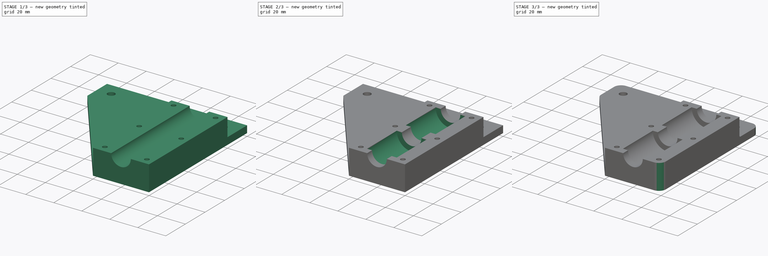
[diagram: build sequence overview — one tinted view per stage of 3, left to right]
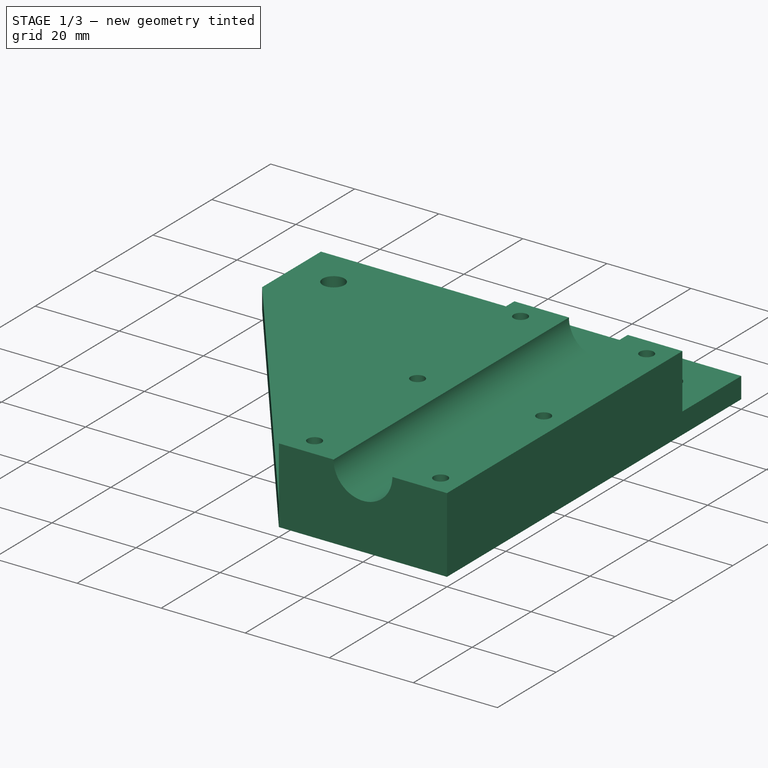
[diagram: stage 1 of 3 — iso view after this stage's code; geometry added in this stage tinted green]
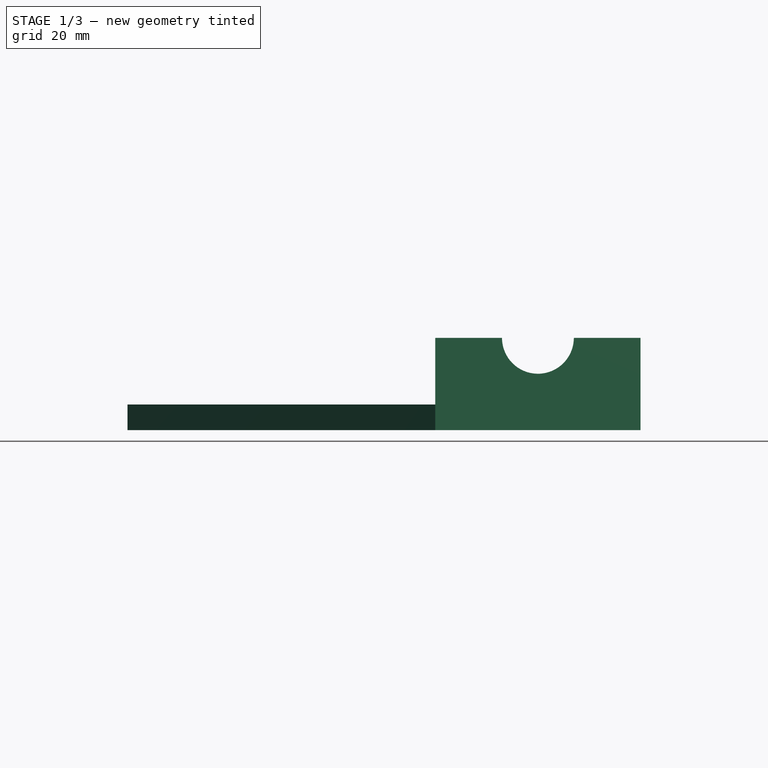
[diagram: stage 1 of 3 — front view after this stage's code; geometry added in this stage tinted green]
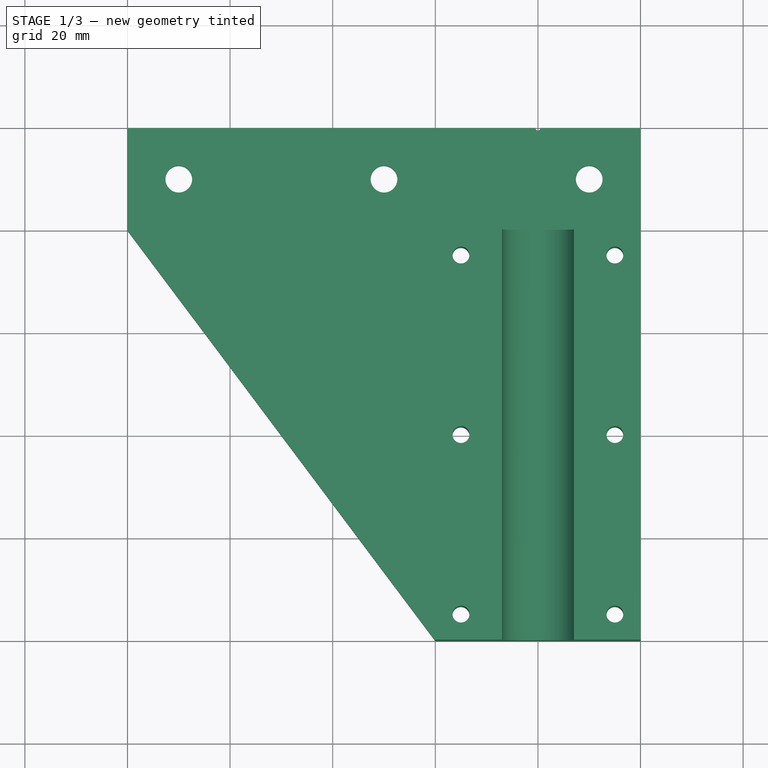
[diagram: stage 1 of 3 — top view after this stage's code; geometry added in this stage tinted green]
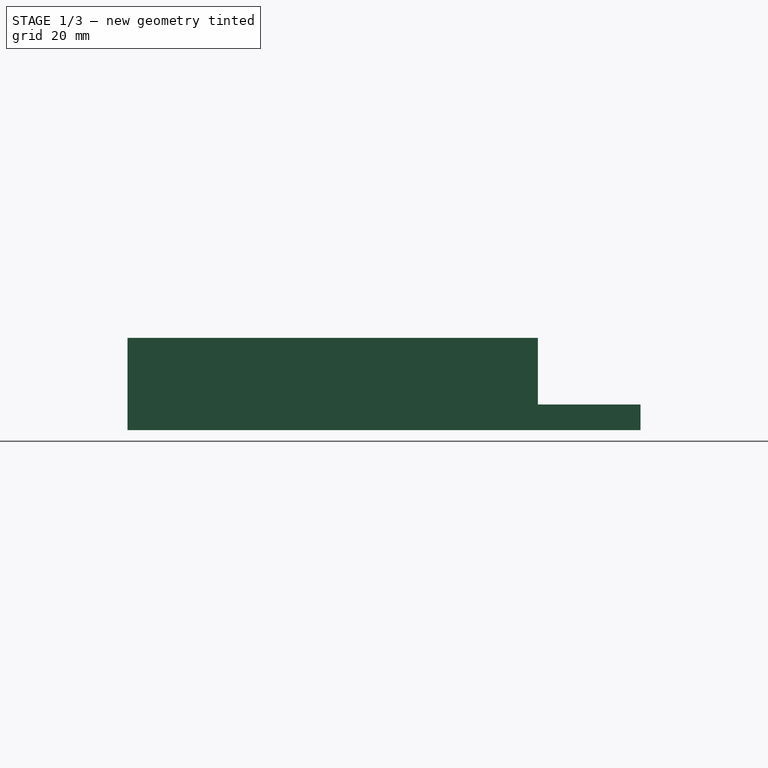
[diagram: stage 1 of 3 — right view after this stage's code; geometry added in this stage tinted green]
FCSTD DOCUMENT  (FreeCAD 0.19R20209 (Git))
Label: Z-Axel-Bearing_1012a
License: Creative Commons Attribution
LicenseURL: http://creativecommons.org/licenses/by/4.0/
objects: Sketcher::SketchObject×6, PartDesign::Pocket×5, PartDesign::Plane×3, PartDesign::Fillet×2, PartDesign::Pad×1, PartDesign::Body×1
note: 26 computed .brp shape members not serialized (recipe doc carries the construction recipe); baked Part::Feature solids carry a one-line shape summary decoded from their .brp

FEATURE [Sketcher::SketchObject] Sketch
  MapMode = 5
  Placement = pos=(0,0,0) rot=(1,0,0;1.5708rad)
  Support = -> [XZ_Plane]
  sketch-geometry (8):
    g0: LineSegment StartX=-80 StartY=-18 StartZ=0 EndX=-80 EndY=-13 EndZ=0
    g1: LineSegment StartX=-80 StartY=-13 StartZ=0 EndX=-20 EndY=-13 EndZ=0
    g2: LineSegment StartX=-20 StartY=-13 StartZ=0 EndX=-20 EndY=0 EndZ=0
    g3: LineSegment StartX=20 StartY=9e-15 StartZ=0 EndX=20 EndY=-18 EndZ=0
    g4: LineSegment StartX=20 StartY=-18 StartZ=0 EndX=-80 EndY=-18 EndZ=0
    g5: ArcOfCircle CenterX=0 CenterY=0 CenterZ=0 NormalX=0 NormalY=0 NormalZ=1 AngleXU=0 Radius=7 StartAngle=3.14159 EndAngle=6.28319
    g6: LineSegment StartX=-7 StartY=0 StartZ=0 EndX=-20 EndY=0 EndZ=0
    g7: LineSegment StartX=7 StartY=0 StartZ=0 EndX=20 EndY=0 EndZ=0
  constraints (24):
    c: Vertical(g0)
    c: Coincident(g0,g1)
    c: Coincident(g1,g2)
    c: Vertical(g2)
    c: Vertical(g3)
    c: Coincident(g3,g4)
    c: Horizontal(g4)
    c: Coincident(g4,g0)
    c: Horizontal(g1)
    c: DistanceY(g0,g0) = 5
    c: DistanceX(g4,g4) = 100
    c: DistanceX(g2,g3) = 40
    c: Symmetric(g3,g2,g-1)
    c: DistanceY(g3,g3) = 18
    c: Horizontal(g5,g5)
    c: Horizontal(g5,g5)
    c: Coincident(g5,g-1)
    c: Diameter(g5) = 14
    c: Coincident(g6,g5)
    c: Horizontal(g6)
    c: Horizontal(g7)
    c: Equal(g7,g6)
    c: Coincident(g6,g2)
    c: Coincident(g7,g5)
FEATURE [PartDesign::Pad] Pad
  Length = 80
  Length2 = 20
  Placement = pos=(0,0,0) rot=(1,0,0;1.5708rad)
  Profile = -> Sketch
  Refine = true
  Type = 4
FEATURE [Sketcher::SketchObject] Sketch001
  ExternalGeometry = -> [Pad]
  MapMode = 5
  Support = -> [XY_Plane]
  sketch-geometry (17):
    g0: LineSegment StartX=-80 StartY=0 StartZ=0 EndX=-80 EndY=-80 EndZ=0
    g1: LineSegment StartX=-80 StartY=-80 StartZ=0 EndX=-20 EndY=-80 EndZ=0
    g2: LineSegment StartX=-20 StartY=-80 StartZ=0 EndX=-80 EndY=0 EndZ=0
    g3: Circle CenterX=-70 CenterY=10 CenterZ=0 NormalX=0 NormalY=0 NormalZ=1 AngleXU=0 Radius=2.6
    g4: Circle CenterX=-30 CenterY=10 CenterZ=0 NormalX=0 NormalY=0 NormalZ=1 AngleXU=0 Radius=2.6
    g5: Circle CenterX=10 CenterY=10 CenterZ=0 NormalX=0 NormalY=0 NormalZ=1 AngleXU=0 Radius=2.6
    g6: LineSegment [constr] StartX=-10.6 StartY=-5 StartZ=0 EndX=10.6 EndY=-5 EndZ=0
    g7: LineSegment [constr] StartX=10.6 StartY=-5 StartZ=0 EndX=10.6 EndY=-75 EndZ=0
    g8: LineSegment [constr] StartX=10.6 StartY=-75 StartZ=0 EndX=-10.6 EndY=-75 EndZ=0
    g9: LineSegment [constr] StartX=-10.6 StartY=-75 StartZ=0 EndX=-10.6 EndY=-5 EndZ=0
    g10: Circle CenterX=-15 CenterY=-5 CenterZ=0 NormalX=0 NormalY=0 NormalZ=1 AngleXU=0 Radius=1.65
    g11: Circle CenterX=-15 CenterY=-40 CenterZ=0 NormalX=0 NormalY=0 NormalZ=1 AngleXU=0 Radius=1.65
    g12: Circle CenterX=-15 CenterY=-75 CenterZ=0 NormalX=0 NormalY=0 NormalZ=1 AngleXU=0 Radius=1.65
    g13: Circle CenterX=15 CenterY=-5 CenterZ=0 NormalX=0 NormalY=0 NormalZ=1 AngleXU=0 Radius=1.65
    g14: Circle CenterX=15 CenterY=-40 CenterZ=0 NormalX=0 NormalY=0 NormalZ=1 AngleXU=0 Radius=1.65
    g15: Circle CenterX=15 CenterY=-75 CenterZ=0 NormalX=0 NormalY=0 NormalZ=1 AngleXU=0 Radius=1.65
    g16: Circle CenterX=0 CenterY=20 CenterZ=0 NormalX=0 NormalY=0 NormalZ=1 AngleXU=0 Radius=0.5
  constraints (43):
    c: Vertical(g0)
    c: Coincident(g0,g1)
    c: Coincident(g1,g2)
    c: Coincident(g2,g0)
    c: Coincident(g1,g-4)
    c: PointOnObject(g0,g-1)
    c: Coincident(g0,g-4)
    c: Horizontal(g3,g4)
    c: Equal(g3,g4)
    c: Equal(g4,g5)
    c: Symmetric(g5,g3,g4)
    c: DistanceY(g-1,g4) = 10
    c: DistanceX(g3,g5) = 80
    c: Diameter(g4) = 5.2
    c: Coincident(g6,g7)
    c: Coincident(g7,g8)
    c: Coincident(g8,g9)
    c: Coincident(g9,g6)
    c: Horizontal(g8)
    c: Vertical(g7)
    c: Vertical(g9)
    c: DistanceX(g6,g6) = 21.2
    c: DistanceY(g7,g7) = 70
    c: DistanceY(g6,g-1) = 5
    c: Symmetric(g12,g10,g11)
    c: Horizontal(g10,g6)
    c: Horizontal(g8,g12)
    c: Equal(g10,g11)
    c: Equal(g11,g12)
    c: Diameter(g10) = 3.3
    c: Vertical(g10,g11)
    c: Symmetric(g6,g6,g-2)
    c: Equal(g13,g14)
    c: Equal(g14,g15)
    c: Equal(g15,g10)
    c: Symmetric(g15,g13,g14)
    c: Symmetric(g13,g10,g-2)
    c: Symmetric(g15,g12,g-2)
    c: DistanceX(g11,g14) = 30
    c: PointOnObject(g16,g-2)
    c: Horizontal(g16,g-3)
    c: Diameter(g16) = 1
    c: DistanceX(g-1,g5) = 10
FEATURE [PartDesign::Pocket] Pocket
  BaseFeature = -> Pad
  Length = 5
  Length2 = 100
  Placement = pos=(0,0,0) rot=(1,0,0;1.5708rad)
  Profile = -> Sketch001
  Refine = true
  Type = 1
FEATURE [Sketcher::SketchObject] Sketch002
  MapMode = 5
  Support = -> [XY_Plane]
  sketch-geometry (4):
    g0: LineSegment StartX=-33.3571 StartY=42.2488 StartZ=0 EndX=33.3571 EndY=42.2488 EndZ=0
    g1: LineSegment StartX=33.3571 StartY=42.2488 StartZ=0 EndX=33.3571 EndY=0 EndZ=0
    g2: LineSegment StartX=33.3571 StartY=0 StartZ=0 EndX=-33.3571 EndY=0 EndZ=0
    g3: LineSegment StartX=-33.3571 StartY=0 StartZ=0 EndX=-33.3571 EndY=42.2488 EndZ=0
  constraints (9):
    c: Coincident(g0,g1)
    c: Coincident(g1,g2)
    c: Coincident(g2,g3)
    c: Coincident(g3,g0)
    c: Horizontal(g0)
    c: Horizontal(g2)
    c: Vertical(g1)
    c: Vertical(g3)
    c: Symmetric(g1,g2,g-1)
FEATURE [PartDesign::Pocket] Pocket001
  BaseFeature = -> Pocket
  Length = 13
  Length2 = 100
  Placement = pos=(0,0,0) rot=(1,0,0;1.5708rad)
  Profile = -> Sketch002
  Refine = true
  Type = 0
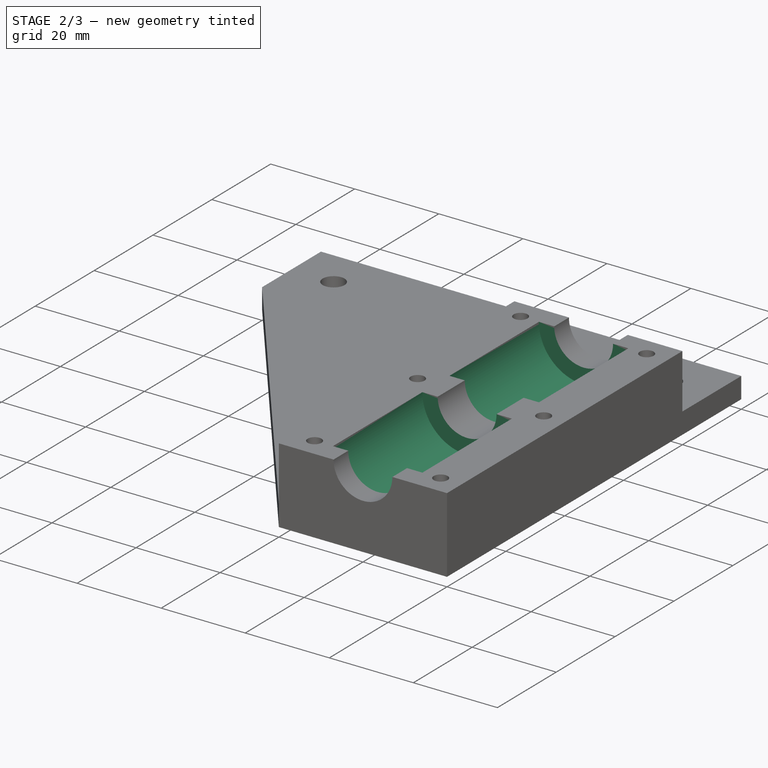
[diagram: stage 2 of 3 — iso view after this stage's code; geometry added in this stage tinted green]
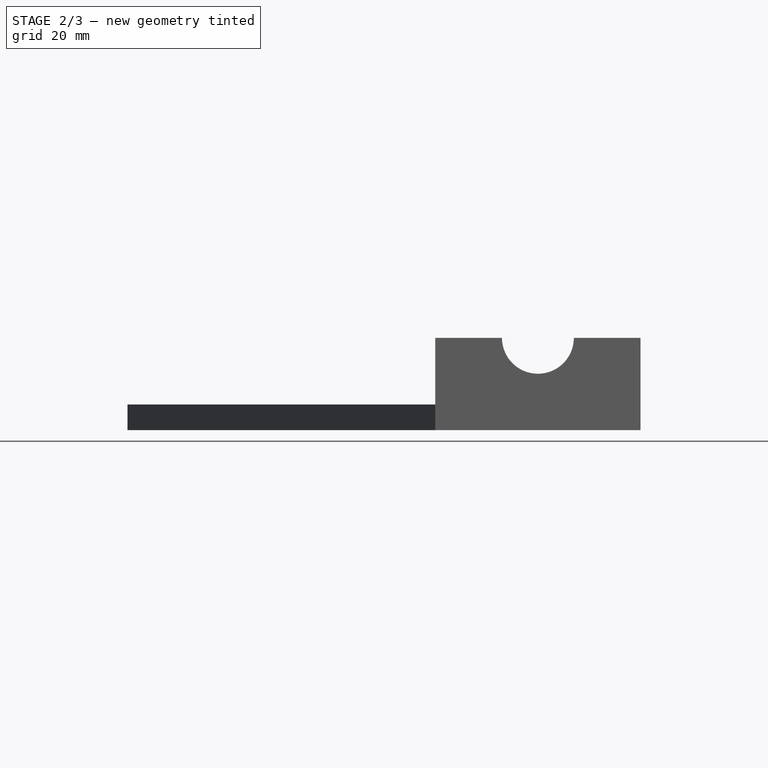
[diagram: stage 2 of 3 — front view after this stage's code; geometry added in this stage tinted green]
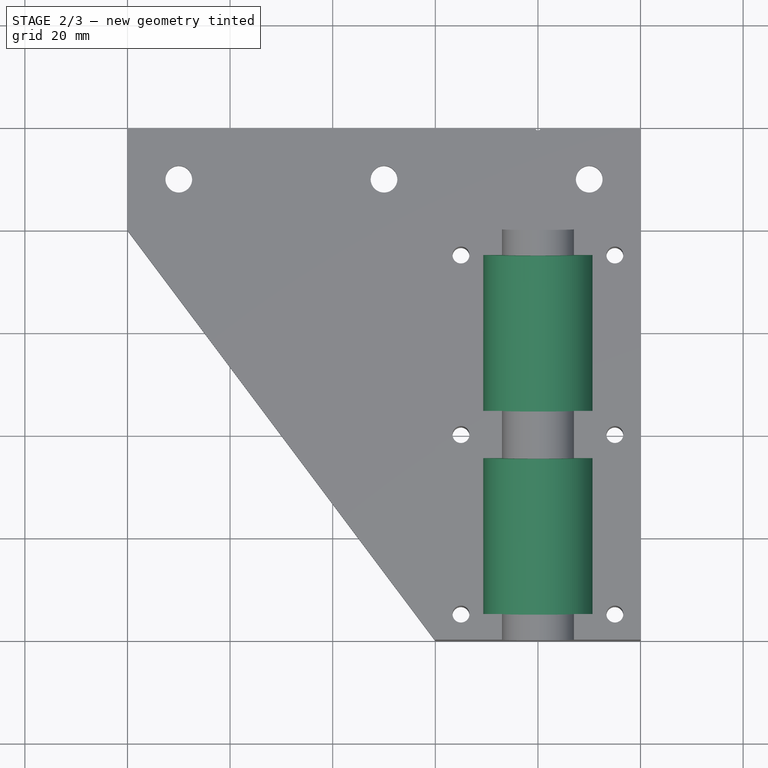
[diagram: stage 2 of 3 — top view after this stage's code; geometry added in this stage tinted green]
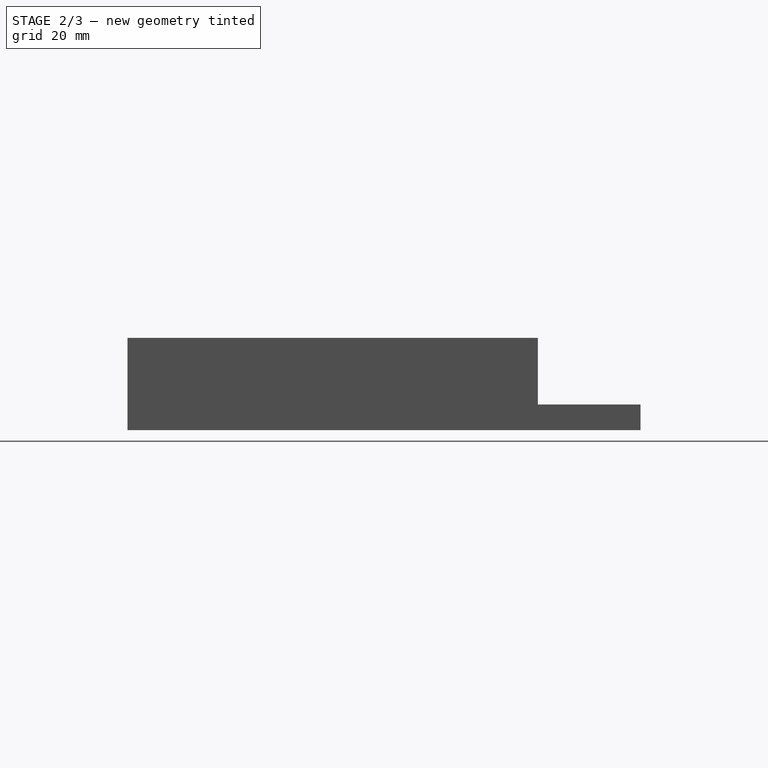
[diagram: stage 2 of 3 — right view after this stage's code; geometry added in this stage tinted green]
FEATURE [PartDesign::Plane] DatumPlane
  AttachmentOffset = pos=(0,0,5) rot=(0,0,1;0rad)
  Length = 119.491
  MapMode = 5
  Placement = pos=(0,-5,-1.1e-15) rot=(1,0,0;1.5708rad)
  ResizeMode = 0
  Support = -> [XZ_Plane]
  Width = 64.4914
FEATURE [Sketcher::SketchObject] Sketch003
  MapMode = 5
  Placement = pos=(0,-5,-1.1e-15) rot=(1,0,0;1.5708rad)
  Support = -> [DatumPlane]
  sketch-geometry (1):
    g0: Circle CenterX=0 CenterY=0 CenterZ=0 NormalX=0 NormalY=0 NormalZ=1 AngleXU=0 Radius=10.65
  constraints (2):
    c: Diameter(g0) = 21.3
    c: Coincident(g0,g-1)
FEATURE [PartDesign::Pocket] Pocket002
  BaseFeature = -> Pocket001
  Length = 30.4
  Length2 = 100
  Placement = pos=(0,0,0) rot=(1,0,0;1.5708rad)
  Profile = -> Sketch003
  Refine = true
  Reversed = true
  Type = 0
FEATURE [PartDesign::Plane] DatumPlane001
  AttachmentOffset = pos=(0,0,75) rot=(0,0,1;0rad)
  Length = 119.491
  MapMode = 5
  Placement = pos=(0,-75,-1.67e-14) rot=(1,0,0;1.5708rad)
  ResizeMode = 0
  Support = -> [XZ_Plane]
  Width = 64.4914
FEATURE [Sketcher::SketchObject] Sketch004
  MapMode = 5
  Placement = pos=(0,-75,-1.67e-14) rot=(1,0,0;1.5708rad)
  Support = -> [DatumPlane001]
  sketch-geometry (1):
    g0: Circle CenterX=0 CenterY=0 CenterZ=0 NormalX=0 NormalY=0 NormalZ=1 AngleXU=0 Radius=10.65
  constraints (2):
    c: Diameter(g0) = 21.3
    c: Coincident(g0,g-1)
FEATURE [PartDesign::Pocket] Pocket003
  BaseFeature = -> Pocket002
  Length = 30.4
  Length2 = 100
  Placement = pos=(0,0,0) rot=(1,0,0;1.5708rad)
  Profile = -> Sketch004
  Refine = true
  Type = 0
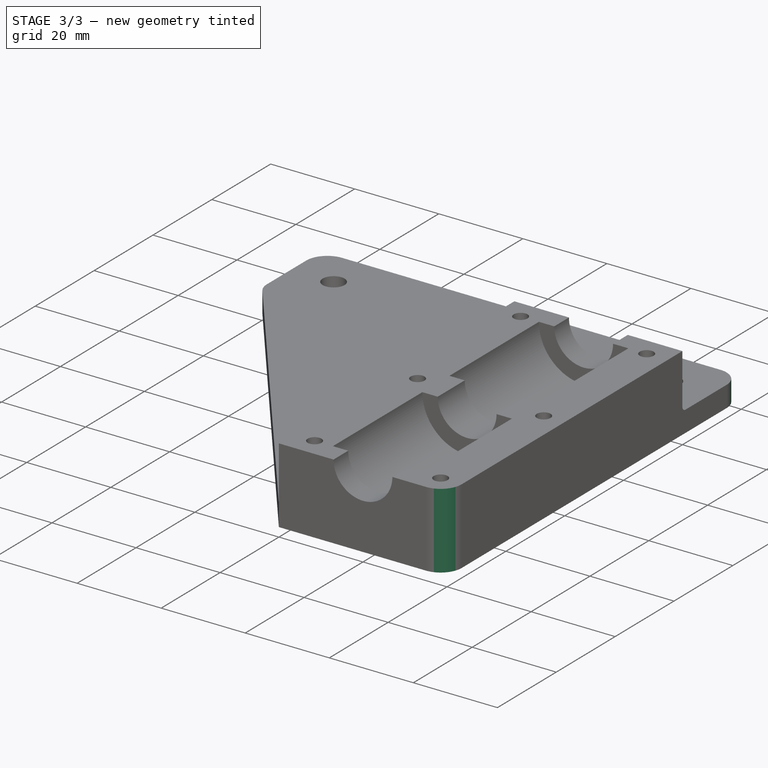
[diagram: stage 3 of 3 — iso view after this stage's code; geometry added in this stage tinted green]
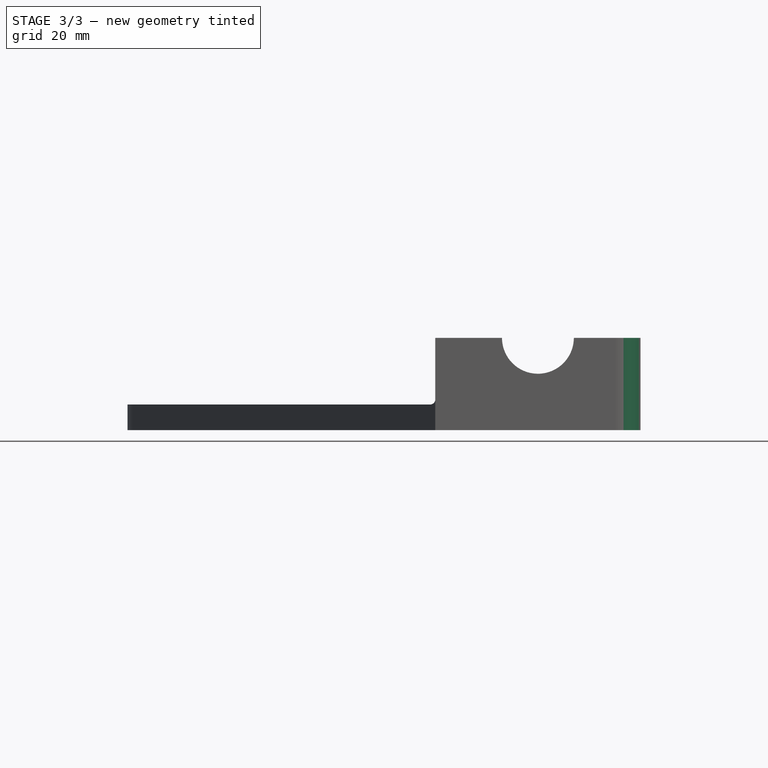
[diagram: stage 3 of 3 — front view after this stage's code; geometry added in this stage tinted green]
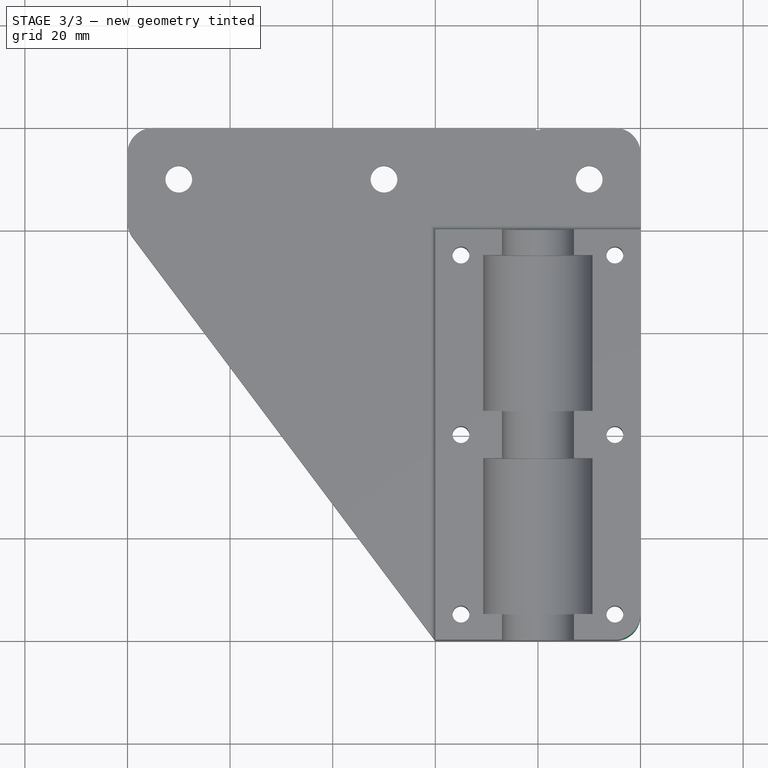
[diagram: stage 3 of 3 — top view after this stage's code; geometry added in this stage tinted green]
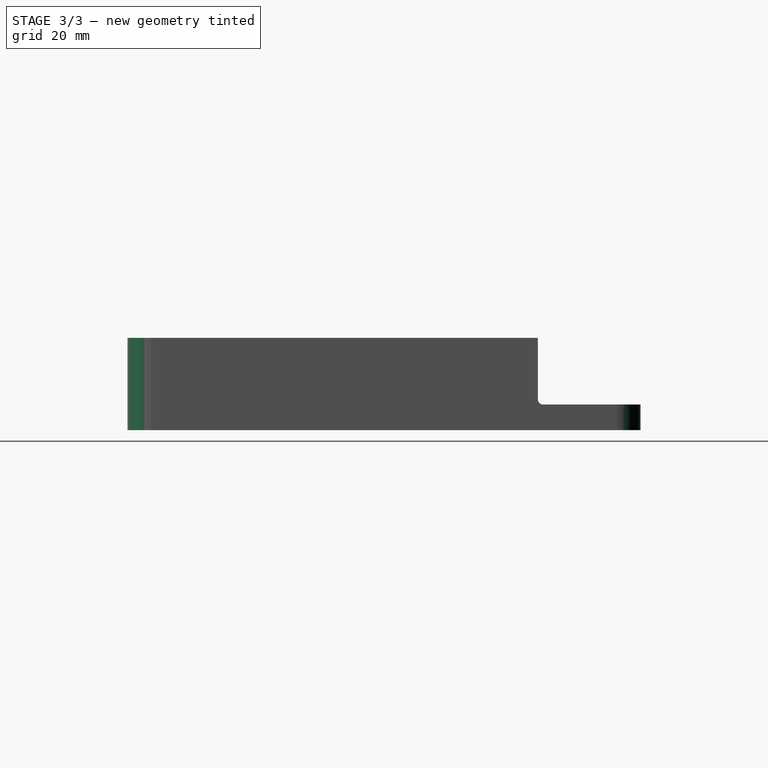
[diagram: stage 3 of 3 — right view after this stage's code; geometry added in this stage tinted green]
FEATURE [PartDesign::Plane] DatumPlane002
  AttachmentOffset = pos=(0,0,-18) rot=(0,0,1;0rad)
  Length = 126
  MapMode = 5
  Placement = pos=(0,0,-18) rot=(0,0,1;0rad)
  ResizeMode = 0
  Support = -> [XY_Plane]
  Width = 126
FEATURE [Sketcher::SketchObject] Sketch005
  ExternalGeometry = -> [Pocket003]
  MapMode = 5
  Placement = pos=(0,0,-18) rot=(0,0,1;0rad)
  Support = -> [DatumPlane002]
  sketch-geometry (42):
    g0: LineSegment StartX=-12.25 StartY=-6.58771 StartZ=0 EndX=-12.25 EndY=-3.41229 EndZ=0
    g1: LineSegment StartX=-12.25 StartY=-3.41229 StartZ=0 EndX=-15 EndY=-1.82457 EndZ=0
    g2: LineSegment StartX=-15 StartY=-1.82457 StartZ=0 EndX=-17.75 EndY=-3.41229 EndZ=0
    g3: LineSegment StartX=-17.75 StartY=-3.41229 StartZ=0 EndX=-17.75 EndY=-6.58771 EndZ=0
    g4: LineSegment StartX=-17.75 StartY=-6.58771 StartZ=0 EndX=-15 EndY=-8.17543 EndZ=0
    g5: LineSegment StartX=-15 StartY=-8.17543 StartZ=0 EndX=-12.25 EndY=-6.58771 EndZ=0
    g6: Circle [constr] CenterX=-15 CenterY=-5 CenterZ=0 NormalX=0 NormalY=0 NormalZ=1 AngleXU=0 Radius=3.17543
    g7: LineSegment StartX=17.75 StartY=-6.58771 StartZ=0 EndX=17.75 EndY=-3.41229 EndZ=0
    g8: LineSegment StartX=17.75 StartY=-3.41229 StartZ=0 EndX=15 EndY=-1.82457 EndZ=0
    g9: LineSegment StartX=15 StartY=-1.82457 StartZ=0 EndX=12.25 EndY=-3.41229 EndZ=0
    g10: LineSegment StartX=12.25 StartY=-3.41229 StartZ=0 EndX=12.25 EndY=-6.58771 EndZ=0
    g11: LineSegment StartX=12.25 StartY=-6.58771 StartZ=0 EndX=15 EndY=-8.17543 EndZ=0
    g12: LineSegment StartX=15 StartY=-8.17543 StartZ=0 EndX=17.75 EndY=-6.58771 EndZ=0
    g13: Circle [constr] CenterX=15 CenterY=-5 CenterZ=0 NormalX=0 NormalY=0 NormalZ=1 AngleXU=0 Radius=3.17543
    g14: LineSegment StartX=-12.25 StartY=-41.5877 StartZ=0 EndX=-12.25 EndY=-38.4123 EndZ=0
    g15: LineSegment StartX=-12.25 StartY=-38.4123 StartZ=0 EndX=-15 EndY=-36.8246 EndZ=0
    g16: LineSegment StartX=-15 StartY=-36.8246 StartZ=0 EndX=-17.75 EndY=-38.4123 EndZ=0
    g17: LineSegment StartX=-17.75 StartY=-38.4123 StartZ=0 EndX=-17.75 EndY=-41.5877 EndZ=0
    g18: LineSegment StartX=-17.75 StartY=-41.5877 StartZ=0 EndX=-15 EndY=-43.1754 EndZ=0
    g19: LineSegment StartX=-15 StartY=-43.1754 StartZ=0 EndX=-12.25 EndY=-41.5877 EndZ=0
    g20: Circle [constr] CenterX=-15 CenterY=-40 CenterZ=0 NormalX=0 NormalY=0 NormalZ=1 AngleXU=0 Radius=3.17543
    g21: LineSegment StartX=17.75 StartY=-41.5877 StartZ=0 EndX=17.75 EndY=-38.4123 EndZ=0
    g22: LineSegment StartX=17.75 StartY=-38.4123 StartZ=0 EndX=15 EndY=-36.8246 EndZ=0
    g23: LineSegment StartX=15 StartY=-36.8246 StartZ=0 EndX=12.25 EndY=-38.4123 EndZ=0
    g24: LineSegment StartX=12.25 StartY=-38.4123 StartZ=0 EndX=12.25 EndY=-41.5877 EndZ=0
    g25: LineSegment StartX=12.25 StartY=-41.5877 StartZ=0 EndX=15 EndY=-43.1754 EndZ=0
    g26: LineSegment StartX=15 StartY=-43.1754 StartZ=0 EndX=17.75 EndY=-41.5877 EndZ=0
    g27: Circle [constr] CenterX=15 CenterY=-40 CenterZ=0 NormalX=0 NormalY=0 NormalZ=1 AngleXU=0 Radius=3.17543
    g28: LineSegment StartX=-12.25 StartY=-76.5877 StartZ=0 EndX=-12.25 EndY=-73.4123 EndZ=0
    g29: LineSegment StartX=-12.25 StartY=-73.4123 StartZ=0 EndX=-15 EndY=-71.8246 EndZ=0
    g30: LineSegment StartX=-15 StartY=-71.8246 StartZ=0 EndX=-17.75 EndY=-73.4123 EndZ=0
    g31: LineSegment StartX=-17.75 StartY=-73.4123 StartZ=0 EndX=-17.75 EndY=-76.5877 EndZ=0
    g32: LineSegment StartX=-17.75 StartY=-76.5877 StartZ=0 EndX=-15 EndY=-78.1754 EndZ=0
    g33: LineSegment StartX=-15 StartY=-78.1754 StartZ=0 EndX=-12.25 EndY=-76.5877 EndZ=0
    g34: Circle [constr] CenterX=-15 CenterY=-75 CenterZ=0 NormalX=0 NormalY=0 NormalZ=1 AngleXU=0 Radius=3.17543
    g35: LineSegment StartX=17.75 StartY=-76.5877 StartZ=0 EndX=17.75 EndY=-73.4123 EndZ=0
    g36: LineSegment StartX=17.75 StartY=-73.4123 StartZ=0 EndX=15 EndY=-71.8246 EndZ=0
    g37: LineSegment StartX=15 StartY=-71.8246 StartZ=0 EndX=12.25 EndY=-73.4123 EndZ=0
    g38: LineSegment StartX=12.25 StartY=-73.4123 StartZ=0 EndX=12.25 EndY=-76.5877 EndZ=0
    g39: LineSegment StartX=12.25 StartY=-76.5877 StartZ=0 EndX=15 EndY=-78.1754 EndZ=0
    g40: LineSegment StartX=15 StartY=-78.1754 StartZ=0 EndX=17.75 EndY=-76.5877 EndZ=0
    g41: Circle [constr] CenterX=15 CenterY=-75 CenterZ=0 NormalX=0 NormalY=0 NormalZ=1 AngleXU=0 Radius=3.17543
  constraints (96):
    c: Coincident(g0,g1)
    c: Coincident(g1,g2)
    c: Coincident(g2,g3)
    c: Coincident(g3,g4)
    c: Coincident(g4,g5)
    c: Coincident(g5,g0)
    c: Equal(g0, g1-g5) x5
    c: PointOnObject(g0,g6)
    c: PointOnObject(g1,g6)
    c: PointOnObject(g2,g6)
    c: PointOnObject(g3,g6)
    c: PointOnObject(g4,g6)
    c: PointOnObject(g5,g6)
    c: Coincident(g7,g8)
    c: Coincident(g8,g9)
    c: Coincident(g9,g10)
    c: Coincident(g10,g11)
    c: Coincident(g11,g12)
    c: Coincident(g12,g7)
    c: Equal(g7, g8-g12) x5
    c: PointOnObject(g7,g13)
    c: PointOnObject(g8,g13)
    c: PointOnObject(g9,g13)
    c: PointOnObject(g10,g13)
    c: PointOnObject(g11,g13)
    c: PointOnObject(g12,g13)
    c: Coincident(g13,g-4)
    c: Coincident(g6,g-3)
    c: Vertical(g6,g1)
    c: Vertical(g13,g8)
    c: Equal(g6,g13)
    c: Coincident(g14,g15)
    c: Coincident(g15,g16)
    c: Coincident(g16,g17)
    c: Coincident(g17,g18)
    c: Coincident(g18,g19)
    c: Coincident(g19,g14)
    c: Equal(g14, g15-g19) x5
    c: PointOnObject(g14,g20)
    c: PointOnObject(g15,g20)
    c: PointOnObject(g16,g20)
    c: PointOnObject(g17,g20)
    c: PointOnObject(g18,g20)
    c: PointOnObject(g19,g20)
    c: Equal(g20,g6)
    c: Coincident(g20,g-5)
    c: Vertical(g20,g15)
    c: Coincident(g21,g22)
    c: Coincident(g22,g23)
    c: Coincident(g23,g24)
    c: Coincident(g24,g25)
    c: Coincident(g25,g26)
    c: Coincident(g26,g21)
    c: Equal(g21, g22-g26) x5
    c: PointOnObject(g21,g27)
    c: PointOnObject(g22,g27)
    c: PointOnObject(g23,g27)
    c: PointOnObject(g24,g27)
    c: PointOnObject(g25,g27)
    c: PointOnObject(g26,g27)
    c: Equal(g13,g27)
    c: Coincident(g27,g-6)
    c: Vertical(g27,g22)
    c: Coincident(g28,g29)
    c: Coincident(g29,g30)
    c: Coincident(g30,g31)
    c: Coincident(g31,g32)
    c: Coincident(g32,g33)
    c: Coincident(g33,g28)
    c: Equal(g28, g29-g33) x5
    c: PointOnObject(g28,g34)
    c: PointOnObject(g29,g34)
    c: PointOnObject(g30,g34)
    c: PointOnObject(g31,g34)
    c: PointOnObject(g32,g34)
    c: PointOnObject(g33,g34)
    c: Coincident(g35,g36)
    c: Coincident(g36,g37)
    c: Coincident(g37,g38)
    c: Coincident(g38,g39)
    c: Coincident(g39,g40)
    c: Coincident(g40,g35)
    c: Equal(g35, g36-g40) x5
    c: PointOnObject(g35,g41)
    c: PointOnObject(g36,g41)
    c: PointOnObject(g37,g41)
    c: PointOnObject(g38,g41)
    c: PointOnObject(g39,g41)
    c: PointOnObject(g40,g41)
    c: Equal(g41,g34)
    c: Equal(g34,g20)
    c: Coincident(g34,g-8)
    c: Coincident(g41,g-7)
    c: Vertical(g34,g29)
    c: Vertical(g41,g36)
    c: Distance(g30,g28) = 5.5
FEATURE [PartDesign::Pocket] Pocket004
  BaseFeature = -> Pocket003
  Length = 5
  Length2 = 100
  Placement = pos=(0,0,0) rot=(1,0,0;1.5708rad)
  Profile = -> Sketch005
  Refine = true
  Reversed = true
  Type = 0
FEATURE [PartDesign::Fillet] Fillet
  Base = -> Pocket004 [Edge155,Edge117,Edge40,Edge38]
  BaseFeature = -> Pocket004
  Placement = pos=(0,0,0) rot=(1,0,0;1.5708rad)
  Radius = 5
  Refine = true
  SupportTransform = true
FEATURE [PartDesign::Fillet] Fillet001
  Base = -> Fillet [Edge58,Edge27]
  BaseFeature = -> Fillet
  Placement = pos=(0,0,0) rot=(1,0,0;1.5708rad)
  Radius = 1
  Refine = true
  SupportTransform = true
FEATURE [PartDesign::Body] Body
  Group = -> [Sketch,Pad,Sketch001,Pocket,Sketch002,Pocket001,DatumPlane,Sketch003,Pocket002,DatumPlane001,Sketch004,Pocket003,DatumPlane002,Sketch005,Pocket004,Fillet,Fillet001]
  Origin = -> Origin
  Tip = -> Fillet001
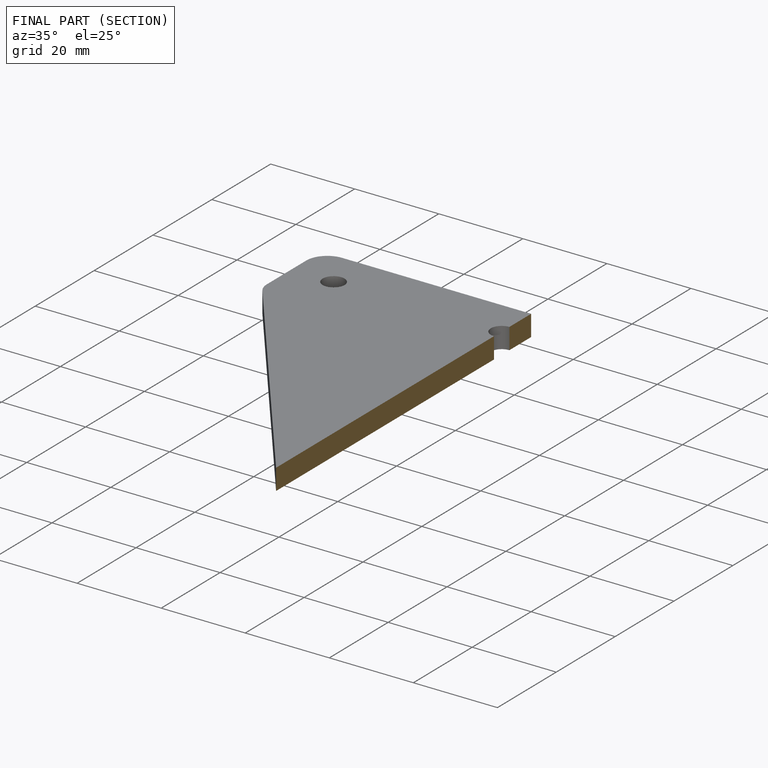
[diagram: finished part — half-section view (interior)]
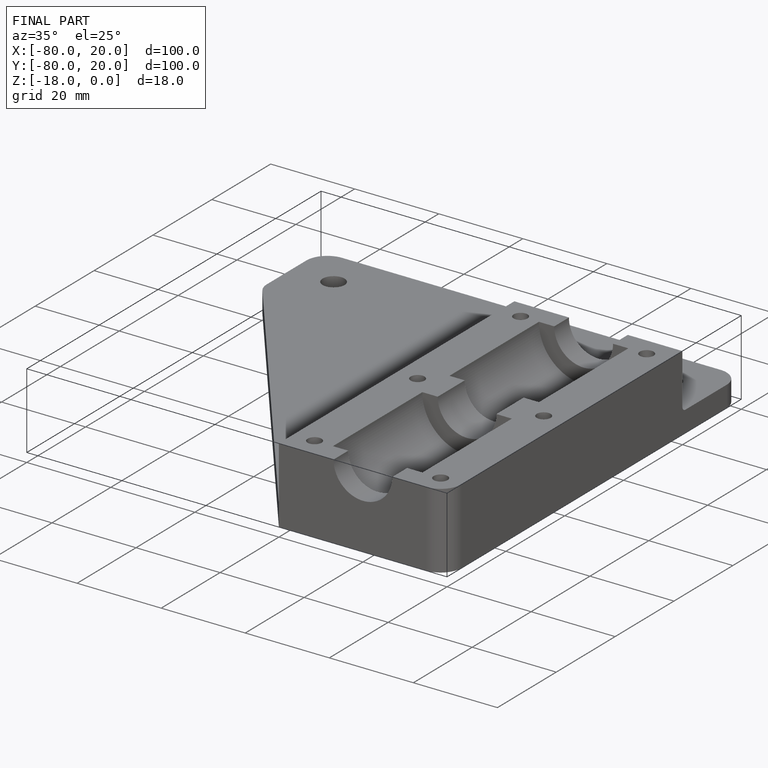
[diagram: finished part — iso view with bounding-box wireframe]
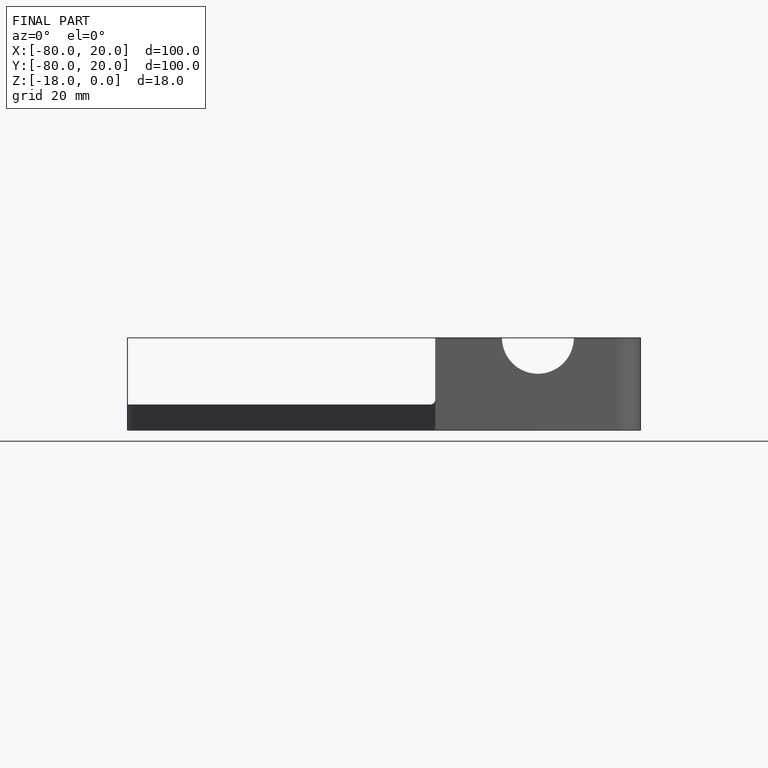
[diagram: finished part — front view with bounding-box wireframe]
